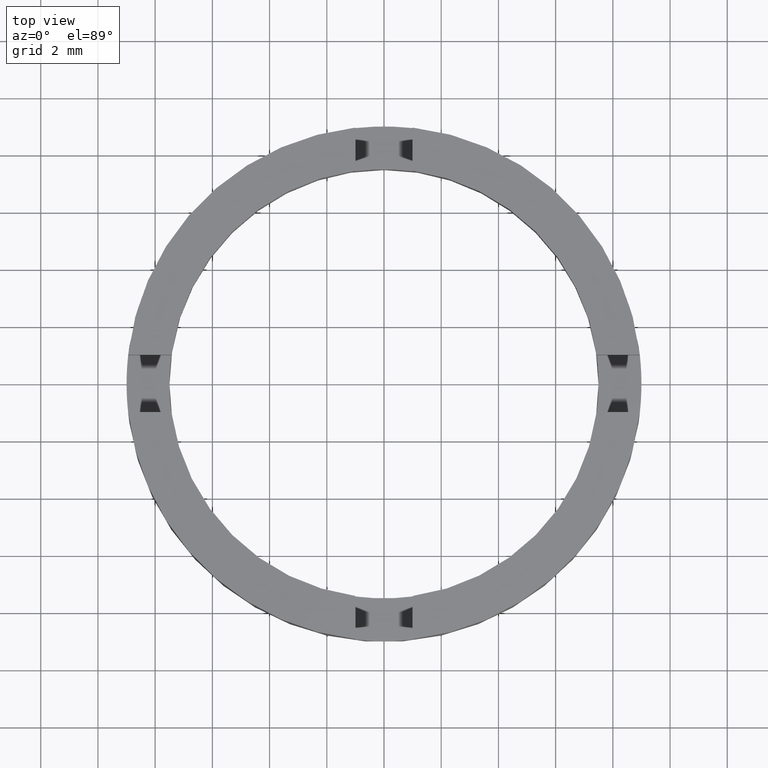
[diagram: clean part render]
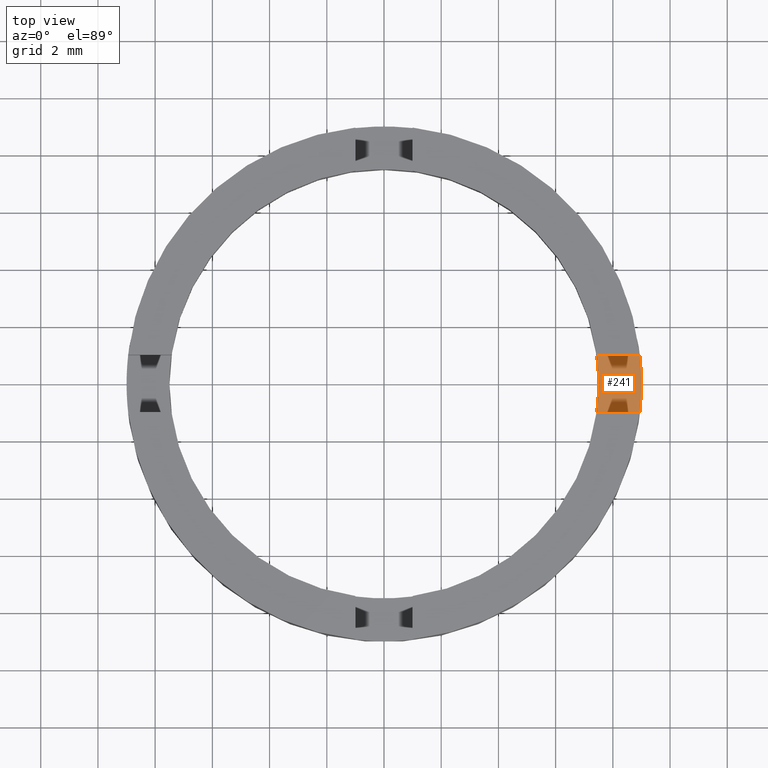
[diagram: same view with one face highlighted and labeled with its STEP entity id]
A machine part, top view. The second image highlights one B-rep face of the part: STEP entity #241.
In plain terms, the highlighted planar face has unit normal (-0, 0, 1).
Its self-contained STEP definition (entity closure, byte-faithful):
#2 = CARTESIAN_POINT ( 'NONE',  ( 0.000000000000000000, 0.000000000000000000, 1.500000000000000000 ) ) ;
#5 = CARTESIAN_POINT ( 'NONE',  ( -3.734474149672297082E-15, -1.000000000000001110, 1.500000000000000000 ) ) ;
#8 = PLANE ( 'NONE',  #232 ) ;
#14 = DIRECTION ( 'NONE',  ( 0.000000000000000000, -0.000000000000000000, -1.000000000000000000 ) ) ;
#23 = CARTESIAN_POINT ( 'NONE',  ( 0.000000000000000000, 0.000000000000000000, 1.500000000000000000 ) ) ;
#24 = DIRECTION ( 'NONE',  ( -0.000000000000000000, 0.000000000000000000, 1.000000000000000000 ) ) ;
#38 = CARTESIAN_POINT ( 'NONE',  ( 8.944271909999153891, -1.000000000000034417, 1.500000000000000000 ) ) ;
#50 = VERTEX_POINT ( 'NONE', #151 ) ;
#64 = ORIENTED_EDGE ( 'NONE', *, *, #704, .T. ) ;
#75 = ORIENTED_EDGE ( 'NONE', *, *, #686, .T. ) ;
#97 = ORIENTED_EDGE ( 'NONE', *, *, #777, .T. ) ;
#112 = CIRCLE ( 'NONE', #206, 9.000000000000000000 ) ;
#121 = VECTOR ( 'NONE', #290, 1000.000000000000000 ) ;
#123 = ORIENTED_EDGE ( 'NONE', *, *, #445, .F. ) ;
#150 = EDGE_CURVE ( 'NONE', #313, #50, #689, .T. ) ;
#151 = CARTESIAN_POINT ( 'NONE',  ( 7.500000000000000000, 9.184850993605147944E-16, 1.500000000000000000 ) ) ;
#175 = EDGE_LOOP ( 'NONE', ( #123, #683, #75, #97, #317, #64 ) ) ;
#192 = CARTESIAN_POINT ( 'NONE',  ( 9.000000000000000000, 1.102182119232617714E-15, 1.500000000000000000 ) ) ;
#194 = FACE_OUTER_BOUND ( 'NONE', #175, .T. ) ;
#206 = AXIS2_PLACEMENT_3D ( 'NONE', #450, #294, #757 ) ;
#232 = AXIS2_PLACEMENT_3D ( 'NONE', #488, #24, #271 ) ;
#241 = ADVANCED_FACE ( 'NONE', ( #194 ), #8, .T. ) ;
#251 = DIRECTION ( 'NONE',  ( 0.000000000000000000, -0.000000000000000000, -1.000000000000000000 ) ) ;
#269 = AXIS2_PLACEMENT_3D ( 'NONE', #2, #251, #289 ) ;
#271 = DIRECTION ( 'NONE',  ( 1.000000000000000000, 0.000000000000000000, 0.000000000000000000 ) ) ;
#289 = DIRECTION ( 'NONE',  ( 1.000000000000000000, 0.000000000000000000, 0.000000000000000000 ) ) ;
#290 = DIRECTION ( 'NONE',  ( 1.000000000000000000, -3.734474149672293138E-15, 0.000000000000000000 ) ) ;
#294 = DIRECTION ( 'NONE',  ( -0.000000000000000000, 0.000000000000000000, 1.000000000000000000 ) ) ;
#311 = DIRECTION ( 'NONE',  ( 1.000000000000000000, -1.154631945610162802E-14, 0.000000000000000000 ) ) ;
#313 = VERTEX_POINT ( 'NONE', #640 ) ;
#317 = ORIENTED_EDGE ( 'NONE', *, *, #684, .T. ) ;
#355 = DIRECTION ( 'NONE',  ( -0.000000000000000000, 0.000000000000000000, 1.000000000000000000 ) ) ;
#386 = CARTESIAN_POINT ( 'NONE',  ( 3.734474149672289194E-15, 0.9999999999999988898, 1.500000000000000000 ) ) ;
#396 = LINE ( 'NONE', #386, #121 ) ;
#404 = AXIS2_PLACEMENT_3D ( 'NONE', #23, #14, #311 ) ;
#437 = AXIS2_PLACEMENT_3D ( 'NONE', #510, #355, #545 ) ;
#445 = EDGE_CURVE ( 'NONE', #313, #680, #396, .T. ) ;
#450 = CARTESIAN_POINT ( 'NONE',  ( 0.000000000000000000, 0.000000000000000000, 1.500000000000000000 ) ) ;
#488 = CARTESIAN_POINT ( 'NONE',  ( 0.000000000000000000, 0.000000000000000000, 1.500000000000000000 ) ) ;
#507 = DIRECTION ( 'NONE',  ( 1.000000000000000000, -3.734474149672292349E-15, 0.000000000000000000 ) ) ;
#510 = CARTESIAN_POINT ( 'NONE',  ( 0.000000000000000000, 0.000000000000000000, 1.500000000000000000 ) ) ;
#545 = DIRECTION ( 'NONE',  ( 1.000000000000000000, 0.000000000000000000, 0.000000000000000000 ) ) ;
#555 = CARTESIAN_POINT ( 'NONE',  ( 8.944271909999160997, 0.9999999999999655831, 1.500000000000000000 ) ) ;
#570 = VERTEX_POINT ( 'NONE', #192 ) ;
#623 = VECTOR ( 'NONE', #507, 1000.000000000000000 ) ;
#640 = CARTESIAN_POINT ( 'NONE',  ( 7.433034373659256566, 0.9999999999999711342, 1.500000000000000000 ) ) ;
#656 = CIRCLE ( 'NONE', #437, 9.000000000000000000 ) ;
#661 = CIRCLE ( 'NONE', #269, 7.500000000000000000 ) ;
#679 = LINE ( 'NONE', #5, #623 ) ;
#680 = VERTEX_POINT ( 'NONE', #555 ) ;
#682 = VERTEX_POINT ( 'NONE', #38 ) ;
#683 = ORIENTED_EDGE ( 'NONE', *, *, #150, .T. ) ;
#684 = EDGE_CURVE ( 'NONE', #682, #570, #112, .T. ) ;
#686 = EDGE_CURVE ( 'NONE', #50, #718, #661, .T. ) ;
#689 = CIRCLE ( 'NONE', #404, 7.500000000000000000 ) ;
#704 = EDGE_CURVE ( 'NONE', #570, #680, #656, .T. ) ;
#718 = VERTEX_POINT ( 'NONE', #763 ) ;
#757 = DIRECTION ( 'NONE',  ( 1.000000000000000000, 0.000000000000000000, 0.000000000000000000 ) ) ;
#763 = CARTESIAN_POINT ( 'NONE',  ( 7.433034373659249461, -1.000000000000028866, 1.500000000000000000 ) ) ;
#777 = EDGE_CURVE ( 'NONE', #718, #682, #679, .T. ) ;